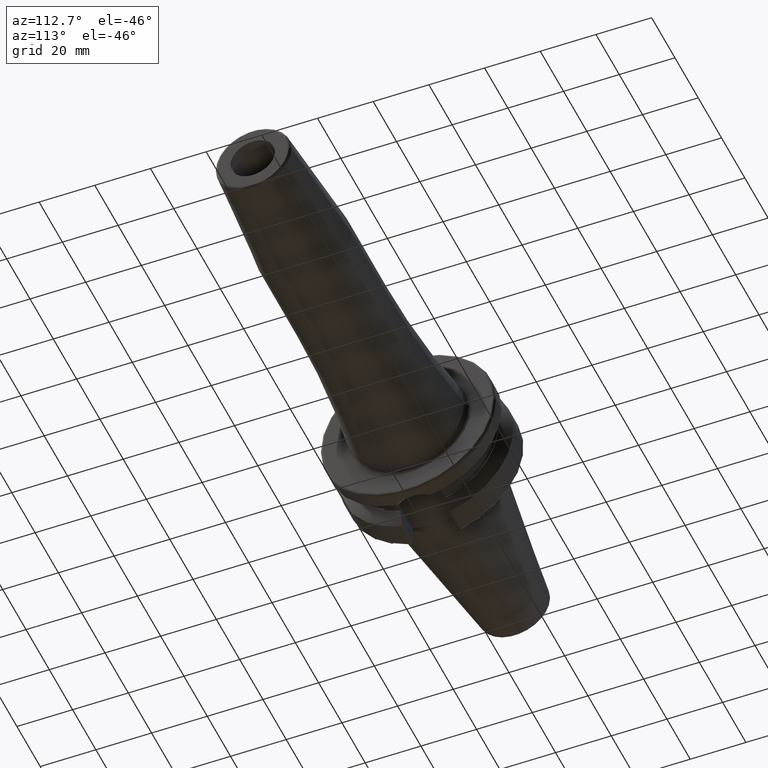
[diagram: clean part render]
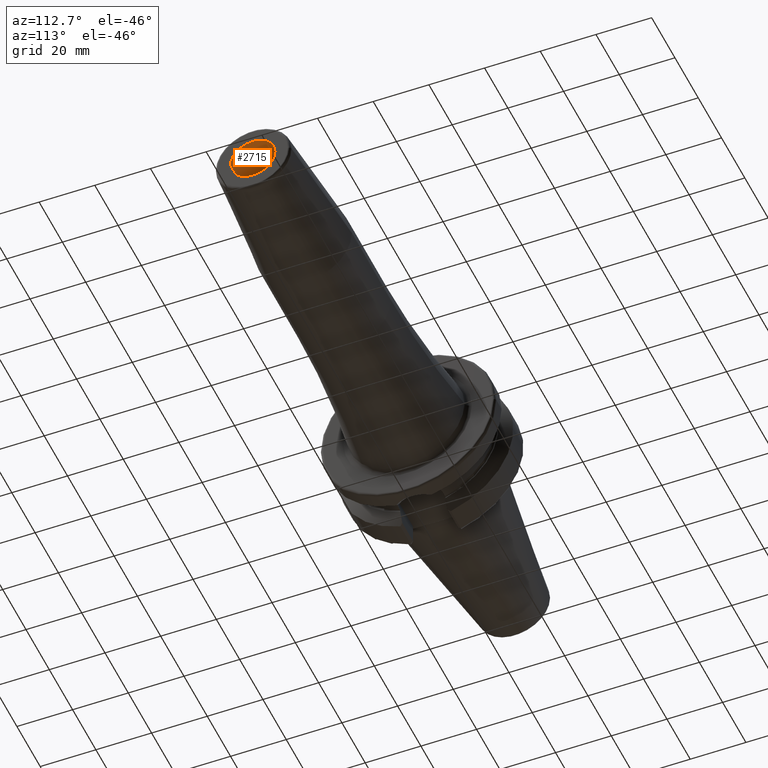
[diagram: same view with one face highlighted and labeled with its STEP entity id]
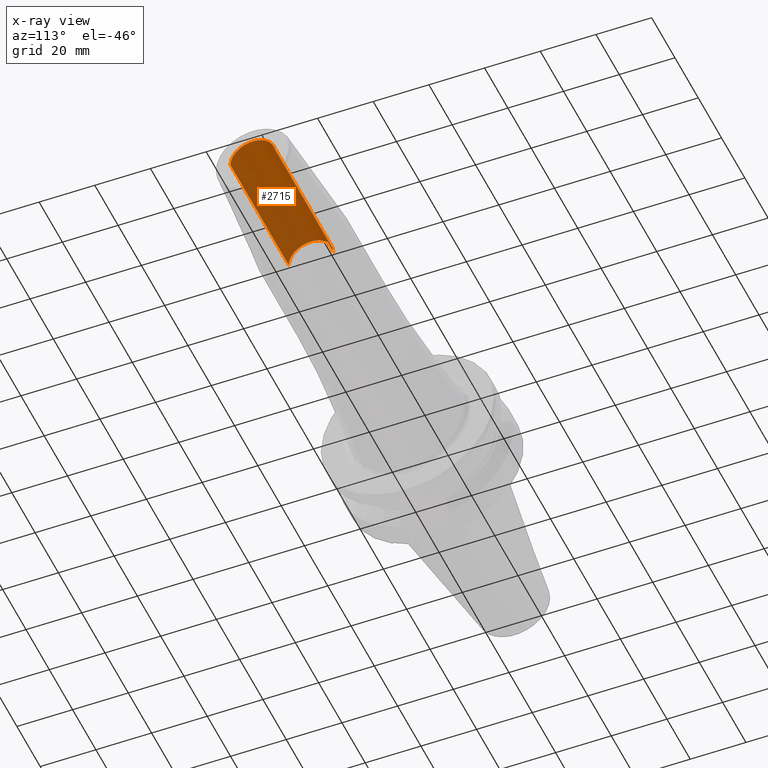
[diagram: x-ray of the same camera — body ghosted, the highlighted face saturated]
A machine part, auxiliary view. The second image highlights one B-rep face of the part: STEP entity #2715.
The next image is the same camera in x-ray: the body ghosted, the highlighted face saturated — about 23% of this face is hidden behind the body in this view.
In plain terms, the highlighted cylindrical surface (edge-blend (fillet) strip) has radius 8 mm, axis along (1, 0, 0).
Its self-contained STEP definition (entity closure, byte-faithful):
#942=CARTESIAN_POINT('',(1.6E2,0.E0,0.E0));
#943=DIRECTION('',(1.E0,0.E0,0.E0));
#944=DIRECTION('',(0.E0,1.E0,0.E0));
#945=AXIS2_PLACEMENT_3D('',#942,#943,#944);
#952=DIRECTION('',(-1.E0,0.E0,0.E0));
#953=VECTOR('',#952,5.E1);
#954=CARTESIAN_POINT('',(1.6E2,8.E0,0.E0));
#955=LINE('',#954,#953);
#956=DIRECTION('',(-1.E0,0.E0,0.E0));
#957=VECTOR('',#956,5.E1);
#958=CARTESIAN_POINT('',(1.6E2,-8.E0,0.E0));
#959=LINE('',#958,#957);
#965=CARTESIAN_POINT('',(1.1E2,0.E0,0.E0));
#966=DIRECTION('',(1.E0,0.E0,0.E0));
#967=DIRECTION('',(0.E0,1.E0,0.E0));
#968=AXIS2_PLACEMENT_3D('',#965,#966,#967);
#1413=CARTESIAN_POINT('',(1.1E2,8.E0,0.E0));
#1414=CARTESIAN_POINT('',(1.1E2,-8.E0,0.E0));
#1415=VERTEX_POINT('',#1413);
#1416=VERTEX_POINT('',#1414);
#1417=CARTESIAN_POINT('',(1.6E2,8.E0,0.E0));
#1418=VERTEX_POINT('',#1417);
#1419=CARTESIAN_POINT('',(1.6E2,-8.E0,0.E0));
#1420=VERTEX_POINT('',#1419);
#2701=CARTESIAN_POINT('',(1.075E2,0.E0,0.E0));
#2702=DIRECTION('',(1.E0,0.E0,0.E0));
#2703=DIRECTION('',(0.E0,-1.E0,0.E0));
#2704=AXIS2_PLACEMENT_3D('',#2701,#2702,#2703);
#2705=CYLINDRICAL_SURFACE('',#2704,8.E0);
#2707=ORIENTED_EDGE('',*,*,#2706,.T.);
#2709=ORIENTED_EDGE('',*,*,#2708,.T.);
#2711=ORIENTED_EDGE('',*,*,#2710,.F.);
#2712=ORIENTED_EDGE('',*,*,#2694,.F.);
#2713=EDGE_LOOP('',(#2707,#2709,#2711,#2712));
#2714=FACE_OUTER_BOUND('',#2713,.F.);
#2715=ADVANCED_FACE('',(#2714),#2705,.F.);
#946=CIRCLE('',#945,8.E0);
#969=CIRCLE('',#968,8.E0);
#2694=EDGE_CURVE('',#1418,#1420,#946,.T.);
#2706=EDGE_CURVE('',#1418,#1415,#955,.T.);
#2708=EDGE_CURVE('',#1415,#1416,#969,.T.);
#2710=EDGE_CURVE('',#1420,#1416,#959,.T.);